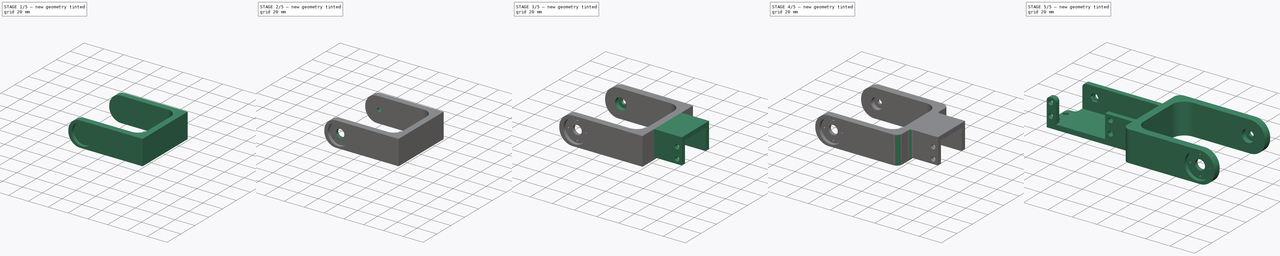
[diagram: build sequence overview — one tinted view per stage of 5, left to right]
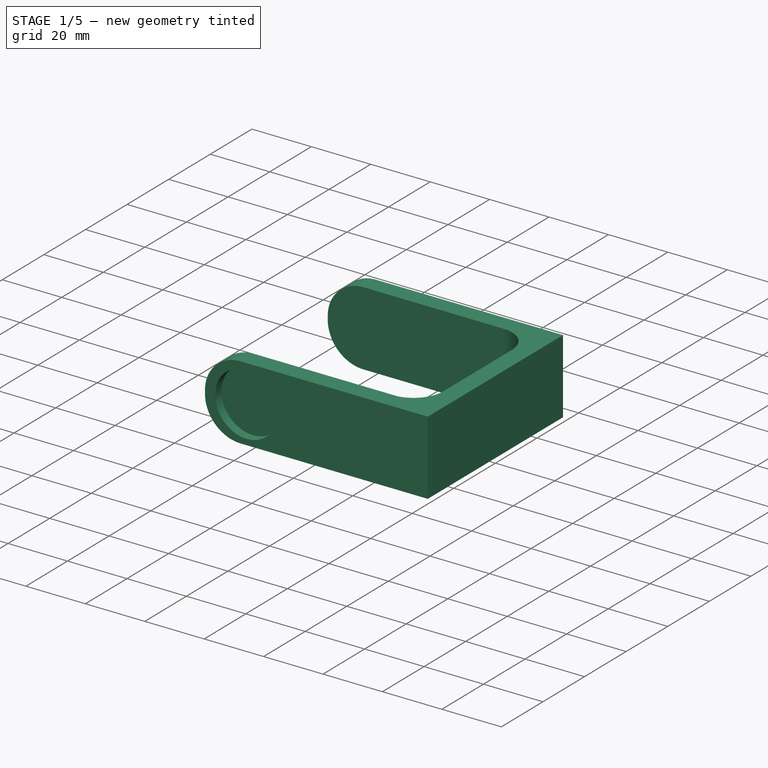
[diagram: stage 1 of 5 — iso view after this stage's code; geometry added in this stage tinted green]
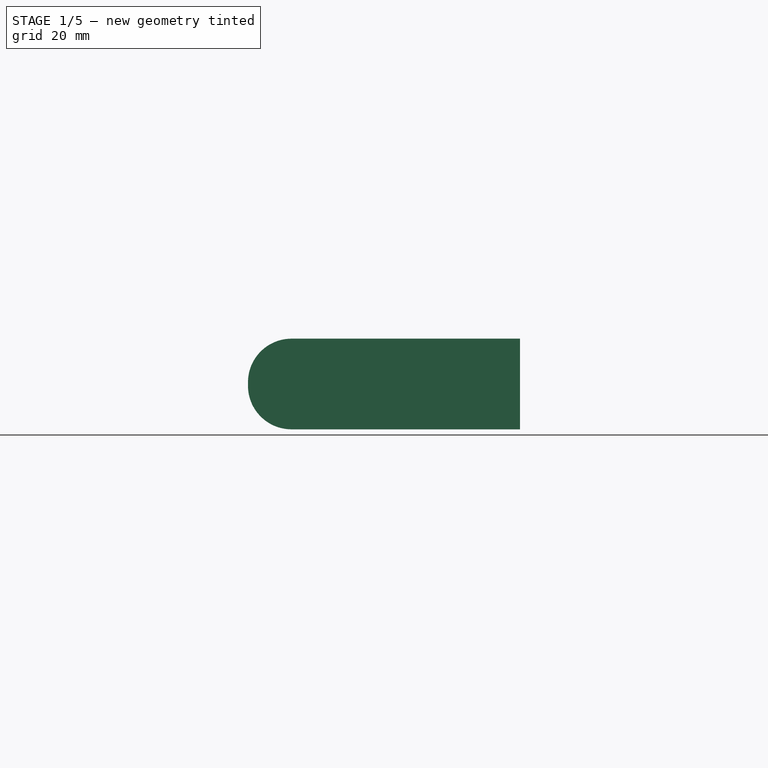
[diagram: stage 1 of 5 — front view after this stage's code; geometry added in this stage tinted green]
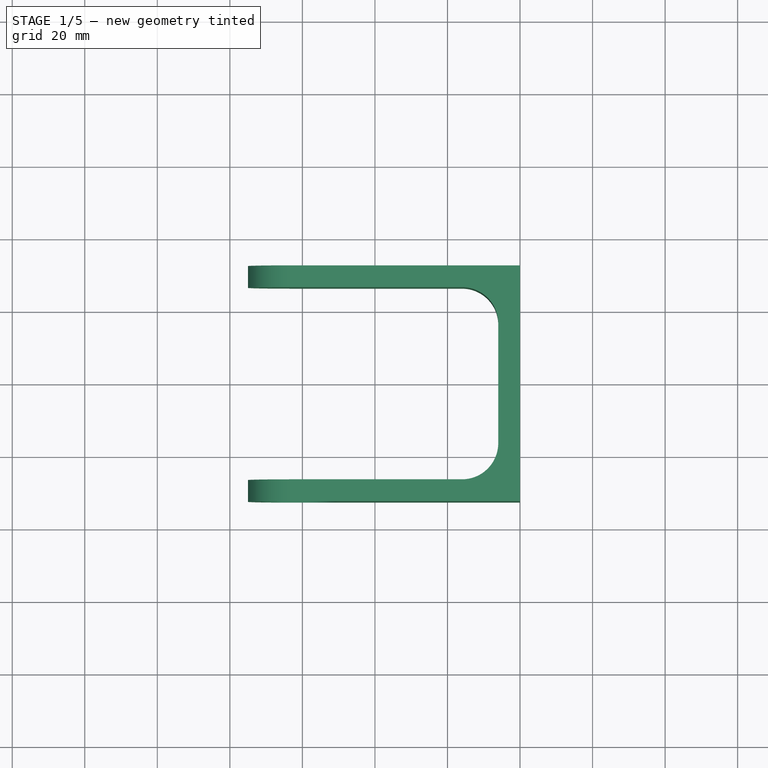
[diagram: stage 1 of 5 — top view after this stage's code; geometry added in this stage tinted green]
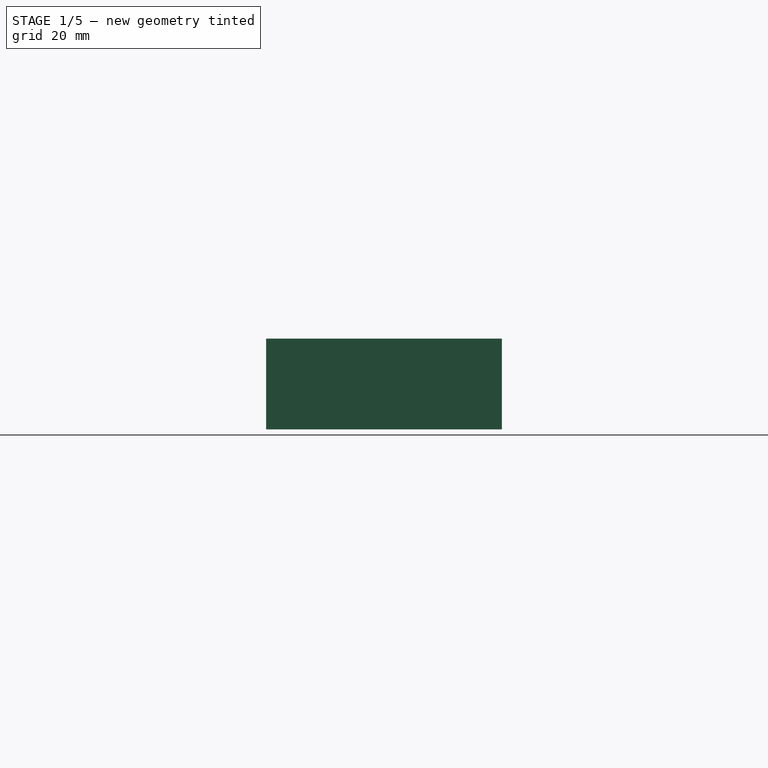
[diagram: stage 1 of 5 — right view after this stage's code; geometry added in this stage tinted green]
FCSTD DOCUMENT  (FreeCAD 0.17R13519 (Git))
Label: pieza3V6
License: CreativeCommons Attribution-ShareAlike
LicenseURL: http://creativecommons.org/licenses/by-sa/4.0/
objects: Sketcher::SketchObject×8, PartDesign::Pocket×7, PartDesign::Plane×7, PartDesign::Fillet×4, PartDesign::Pad×2, Part::Fillet×1, PartDesign::Body×1, Part::MultiFuse×1, Part::Feature×1
note: 41 computed .brp shape members not serialized (recipe doc carries the construction recipe); baked Part::Feature solids carry a one-line shape summary decoded from their .brp

FEATURE [Sketcher::SketchObject] Sketch
  MapMode = 5
  Support = -> [XY_Plane]
  sketch-geometry (10):
    g0: LineSegment StartX=-75 StartY=32.5 StartZ=0 EndX=-75 EndY=26.5 EndZ=0
    g1: LineSegment StartX=-75 StartY=26.5 StartZ=0 EndX=-16 EndY=26.5 EndZ=0
    g2: LineSegment StartX=-6 StartY=16.5 StartZ=0 EndX=-6 EndY=-16.5 EndZ=0
    g3: LineSegment StartX=-16 StartY=-26.5 StartZ=0 EndX=-75 EndY=-26.5 EndZ=0
    g4: LineSegment StartX=-75 StartY=-26.5 StartZ=0 EndX=-75 EndY=-32.5 EndZ=0
    g5: LineSegment StartX=-75 StartY=-32.5 StartZ=0 EndX=0 EndY=-32.5 EndZ=0
    g6: LineSegment StartX=0 StartY=32.5 StartZ=0 EndX=-75 EndY=32.5 EndZ=0
    g7: ArcOfCircle CenterX=-16 CenterY=16.5 CenterZ=0 NormalX=0 NormalY=0 NormalZ=1 AngleXU=0 Radius=10 StartAngle=0 EndAngle=1.5708
    g8: ArcOfCircle CenterX=-16 CenterY=-16.5 CenterZ=0 NormalX=0 NormalY=0 NormalZ=1 AngleXU=0 Radius=10 StartAngle=4.71239 EndAngle=6.28319
    g9: LineSegment StartX=0 StartY=32.5 StartZ=0 EndX=0 EndY=-32.5 EndZ=0
  constraints (27):
    c: Vertical(g0)
    c: Coincident(g0,g1)
    c: Horizontal(g1)
    c: Vertical(g2)
    c: Horizontal(g3)
    c: Coincident(g3,g4)
    c: Vertical(g4)
    c: Coincident(g4,g5)
    c: PointOnObject(g5,g-2)
    c: Horizontal(g5)
    c: Coincident(g6,g0)
    c: Horizontal(g6)
    c: DistanceX(g6,g6) = 75
    c: Equal(g6,g5)
    c: Equal(g0,g4)
    c: DistanceY(g4,g4) = 6
    c: DistanceY(g5,g6) = 65
    c: Tangent(g1,g7) = 1.5708
    c: Tangent(g2,g7) = 1.5708
    c: Tangent(g2,g8) = 1.5708
    c: Tangent(g3,g8) = 1.5708
    c: Equal(g8,g7)
    c: Radius(g7) = 10
    c: Symmetric(g5,g6,g-1)
    c: DistanceX(g2,g5) = 6
    c: Coincident(g9,g6)
    c: Coincident(g9,g5)
FEATURE [PartDesign::Pad] Pad
  Length = 25
  Length2 = 100
  Profile = -> Sketch
  Type = 0
FEATURE [PartDesign::Fillet] Fillet005
  Base = -> Pad [Edge7,Edge6,Edge24,Edge25]
  BaseFeature = -> Pad
  Radius = 12
FEATURE [PartDesign::Plane] DatumPlane
  MapMode = 5
  Placement = pos=(0,-32.5,0) rot=(1,0,0;1.5708rad)
  Support = -> [Fillet005]
FEATURE [Sketcher::SketchObject] Sketch001
  MapMode = 5
  Placement = pos=(0,-32.5,0) rot=(1,0,0;1.5708rad)
  Support = -> [DatumPlane]
  sketch-geometry (2):
    g0: LineSegment [constr] StartX=-89.6906 StartY=12.5 StartZ=0 EndX=25.4828 EndY=12.5 EndZ=0
    g1: Circle CenterX=-61 CenterY=12.5 CenterZ=0 NormalX=0 NormalY=0 NormalZ=1 AngleXU=0 Radius=10.55
  constraints (5):
    c: Horizontal(g0)
    c: DistanceY(g-1,g0) = 12.5
    c: PointOnObject(g1,g0)
    c: Radius(g1) = 10.55
    c: DistanceX(g1,g-1) = 61
FEATURE [PartDesign::Pocket] Pocket
  BaseFeature = -> Fillet005
  Length = 3
  Length2 = 100
  Profile = -> Sketch001
  Type = 0
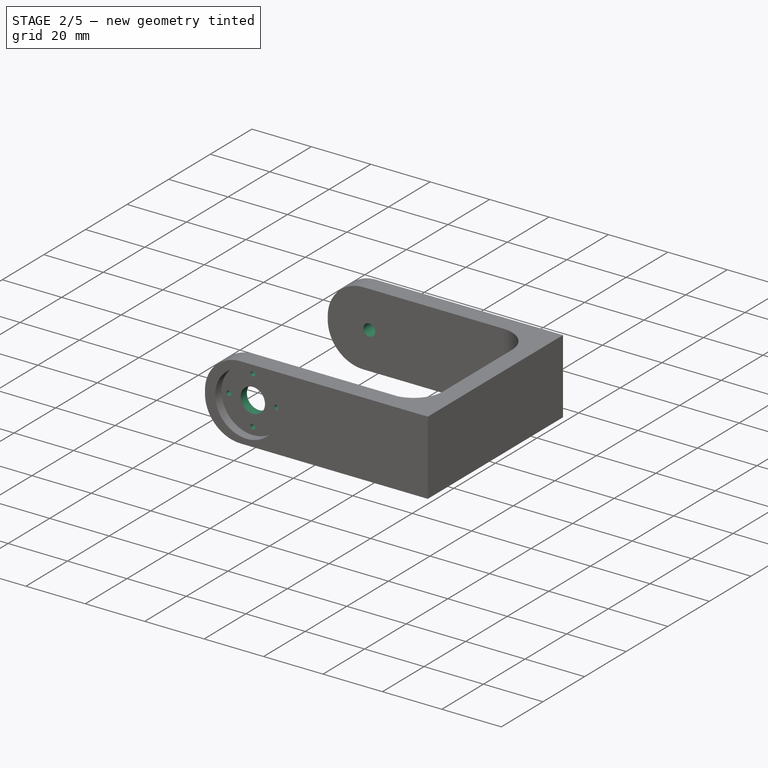
[diagram: stage 2 of 5 — iso view after this stage's code; geometry added in this stage tinted green]
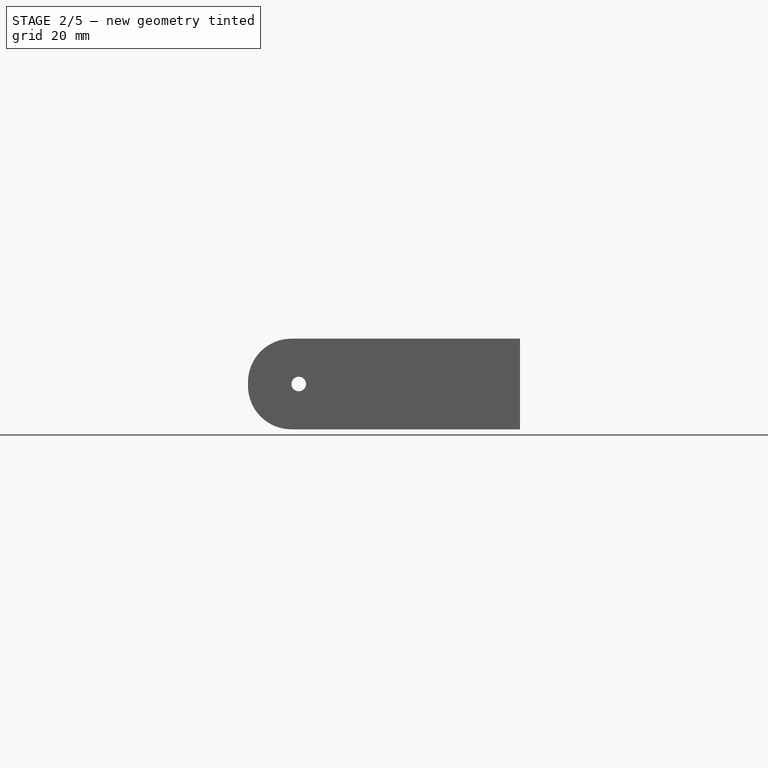
[diagram: stage 2 of 5 — front view after this stage's code; geometry added in this stage tinted green]
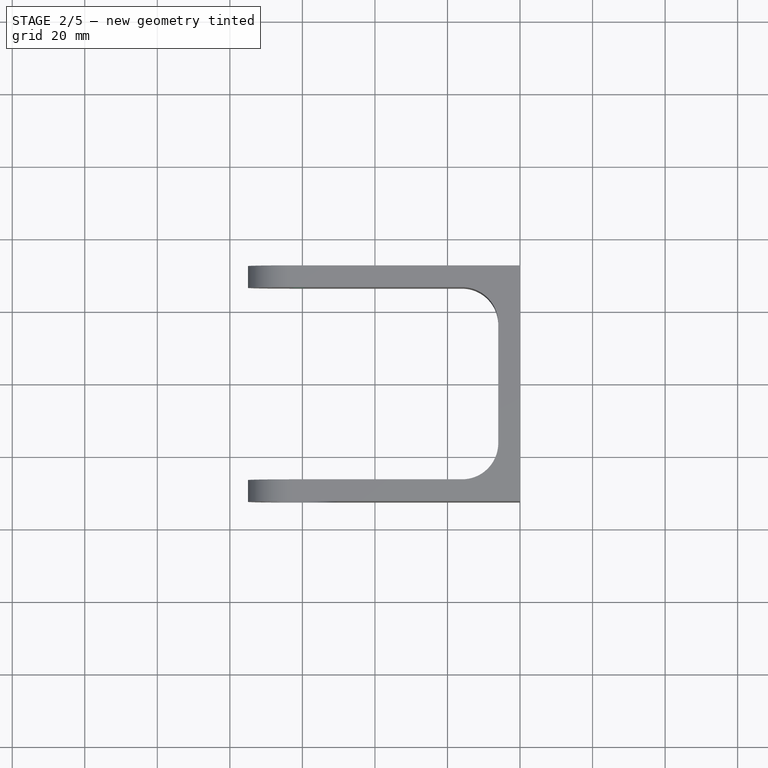
[diagram: stage 2 of 5 — top view after this stage's code; geometry added in this stage tinted green]
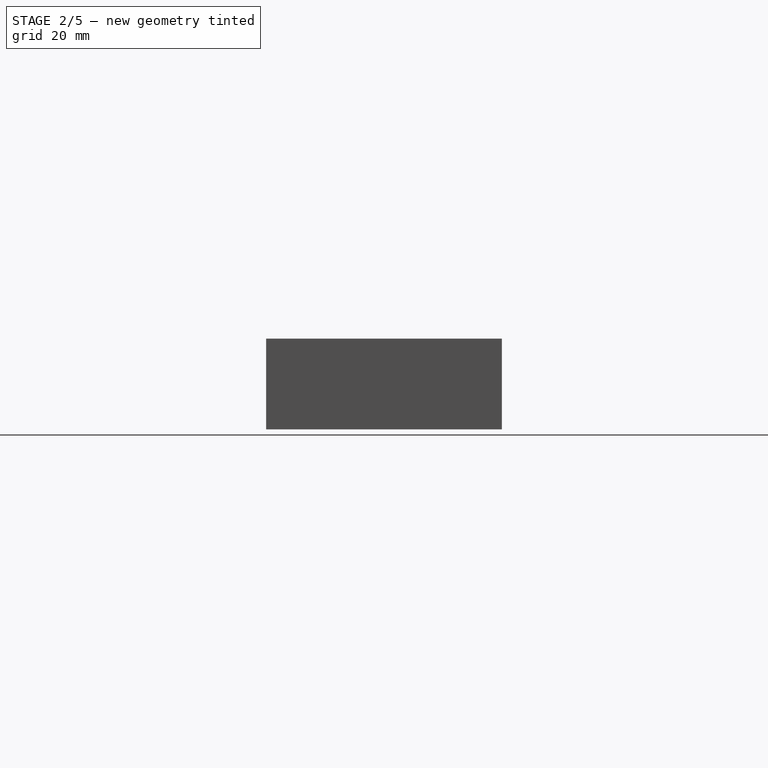
[diagram: stage 2 of 5 — right view after this stage's code; geometry added in this stage tinted green]
FEATURE [PartDesign::Plane] DatumPlane001
  MapMode = 5
  Placement = pos=(0,-29.5,0) rot=(1,0,0;1.5708rad)
  Support = -> [Pocket]
FEATURE [Sketcher::SketchObject] Sketch002
  ExternalGeometry = -> [Pocket]
  MapMode = 5
  Placement = pos=(0,-29.5,0) rot=(1,0,0;1.5708rad)
  Support = -> [DatumPlane001]
  sketch-geometry (1):
    g0: Circle CenterX=-61 CenterY=12.5 CenterZ=0 NormalX=0 NormalY=0 NormalZ=1 AngleXU=0 Radius=4.1
  constraints (2):
    c: Coincident(g0,g-3)
    c: Radius(g0) = 4.1
FEATURE [PartDesign::Pocket] Pocket001
  BaseFeature = -> Pocket
  Length = 5
  Length2 = 100
  Profile = -> Sketch002
  Type = 2
FEATURE [PartDesign::Plane] DatumPlane002
  MapMode = 5
  Placement = pos=(0,-29.5,0) rot=(1,0,0;1.5708rad)
  Support = -> [Pocket001]
FEATURE [Sketcher::SketchObject] Sketch003
  ExternalGeometry = -> [Pocket001]
  MapMode = 5
  Placement = pos=(0,-29.5,0) rot=(1,0,0;1.5708rad)
  Support = -> [DatumPlane002]
  sketch-geometry (6):
    g0: LineSegment [constr] StartX=-61 StartY=23.8845 StartZ=0 EndX=-61 EndY=-3.54192 EndZ=0
    g1: LineSegment [constr] StartX=-76.3948 StartY=12.5 StartZ=0 EndX=-47.5921 EndY=12.5 EndZ=0
    g2: Circle CenterX=-61 CenterY=20.57 CenterZ=0 NormalX=0 NormalY=0 NormalZ=1 AngleXU=0 Radius=0.8
    g3: Circle CenterX=-52.93 CenterY=12.5 CenterZ=0 NormalX=0 NormalY=0 NormalZ=1 AngleXU=0 Radius=0.8
    g4: Circle CenterX=-61 CenterY=4.43 CenterZ=0 NormalX=0 NormalY=0 NormalZ=1 AngleXU=0 Radius=0.8
    g5: Circle CenterX=-69.07 CenterY=12.5 CenterZ=0 NormalX=0 NormalY=0 NormalZ=1 AngleXU=0 Radius=0.8
  constraints (13):
    c: Vertical(g0)
    c: Horizontal(g1)
    c: PointOnObject(g4,g0)
    c: Equal(g2,g3)
    c: Equal(g3,g4)
    c: Equal(g4,g5)
    c: PointOnObject(g3,g1)
    c: PointOnObject(g5,g1)
    c: DistanceY(g4,g2) = 16.14
    c: Symmetric(g2,g4,g1)
    c: Symmetric(g5,g3,g0)
    c: Radius(g2) = 0.8
    c: DistanceX(g5,g3) = 16.14
FEATURE [PartDesign::Pocket] Pocket002
  BaseFeature = -> Pocket001
  Length = 5
  Length2 = 100
  Profile = -> Sketch003
  Type = 2
FEATURE [PartDesign::Plane] DatumPlane003
  MapMode = 5
  Placement = pos=(0,-29.5,0) rot=(1,0,0;1.5708rad)
  Support = -> [Pocket002]
FEATURE [Sketcher::SketchObject] Sketch004
  ExternalGeometry = -> [Pocket002]
  MapMode = 5
  Placement = pos=(0,-29.5,0) rot=(1,0,0;1.5708rad)
  Support = -> [DatumPlane003]
  sketch-geometry (1):
    g0: Circle CenterX=-61 CenterY=12.5 CenterZ=0 NormalX=0 NormalY=0 NormalZ=1 AngleXU=0 Radius=2
  constraints (2):
    c: Coincident(g0,g-3)
    c: Radius(g0) = 2
FEATURE [PartDesign::Pocket] Pocket003
  BaseFeature = -> Pocket002
  Length = 5
  Length2 = 100
  Profile = -> Sketch004
  Type = 1
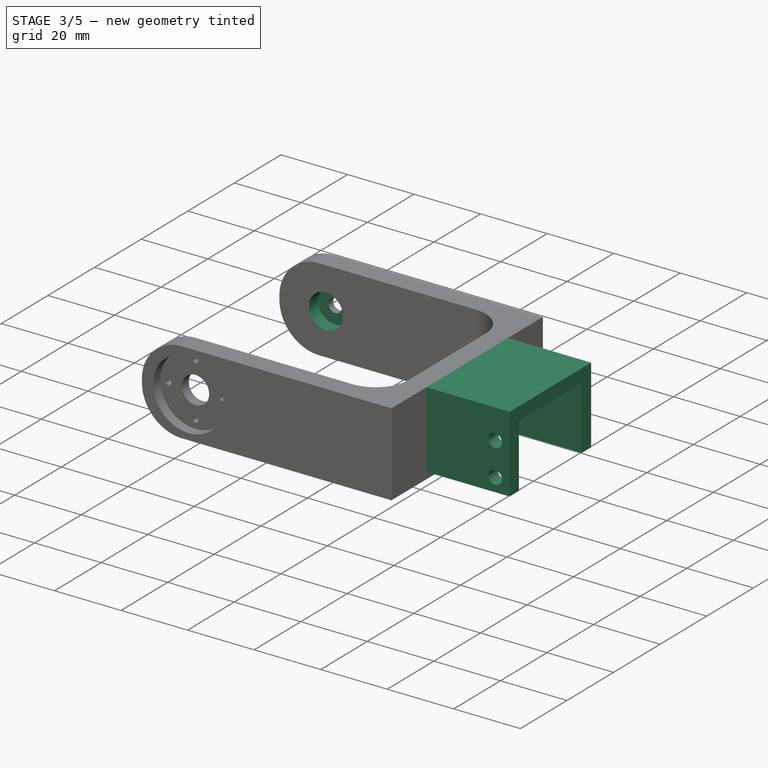
[diagram: stage 3 of 5 — iso view after this stage's code; geometry added in this stage tinted green]
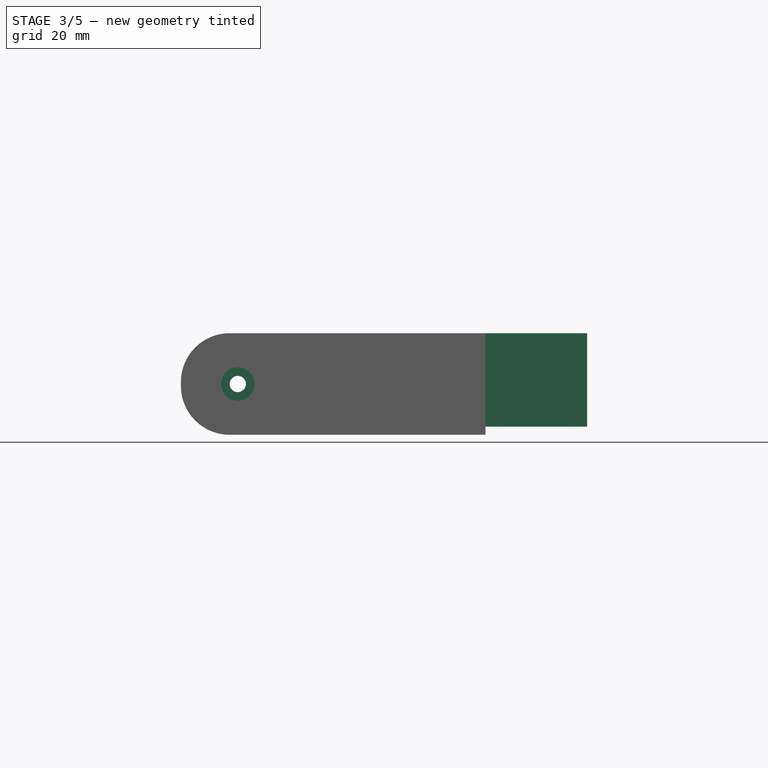
[diagram: stage 3 of 5 — front view after this stage's code; geometry added in this stage tinted green]
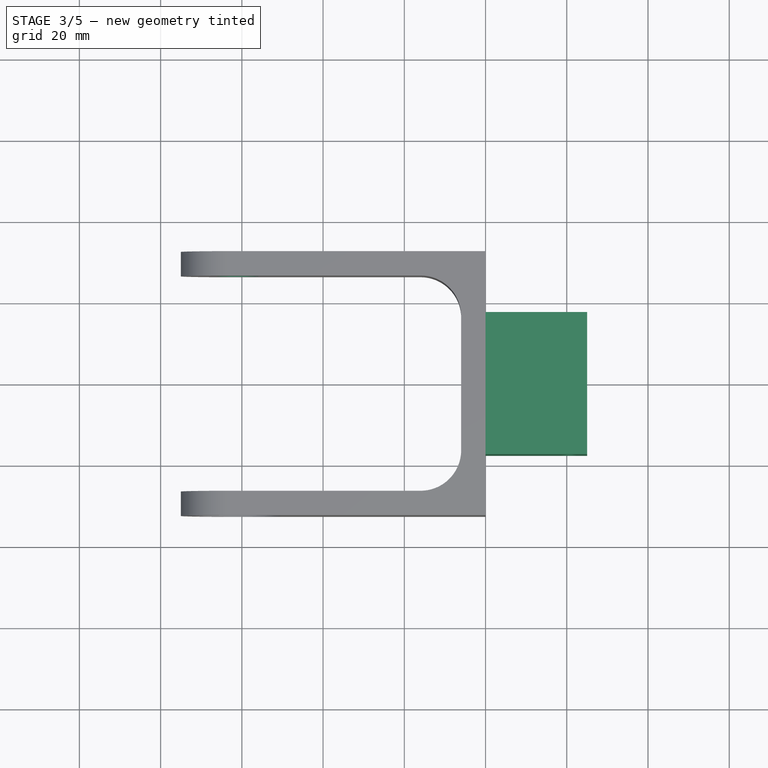
[diagram: stage 3 of 5 — top view after this stage's code; geometry added in this stage tinted green]
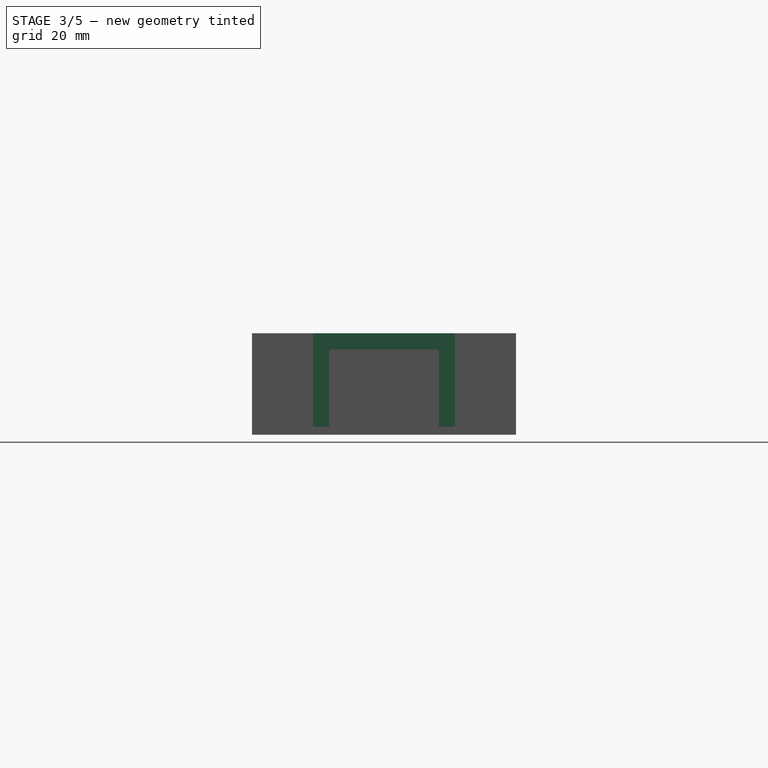
[diagram: stage 3 of 5 — right view after this stage's code; geometry added in this stage tinted green]
FEATURE [PartDesign::Plane] DatumPlane004
  MapMode = 5
  Placement = pos=(0,26.5,0) rot=(1,0,0;1.5708rad)
  Support = -> [Pocket003]
FEATURE [Sketcher::SketchObject] Sketch005
  ExternalGeometry = -> [Pocket003]
  MapMode = 5
  Placement = pos=(0,26.5,0) rot=(1,0,0;1.5708rad)
  Support = -> [DatumPlane004]
  sketch-geometry (1):
    g0: Circle CenterX=-61 CenterY=12.5 CenterZ=0 NormalX=0 NormalY=0 NormalZ=1 AngleXU=0 Radius=5.1
  constraints (2):
    c: Coincident(g0,g-3)
    c: Radius(g0) = 5.1
FEATURE [PartDesign::Pocket] Pocket004
  BaseFeature = -> Pocket003
  Length = 4
  Length2 = 100
  Profile = -> Sketch005
  Type = 0
FEATURE [PartDesign::Plane] DatumPlane005
  MapMode = 5
  Placement = pos=(0,0,0) rot=(0.57735,0.57735,0.57735;2.0944rad)
  Support = -> [Pocket004]
FEATURE [Sketcher::SketchObject] Sketch006
  ExternalGeometry = -> [Pocket004]
  MapMode = 5
  Placement = pos=(0,0,0) rot=(0.57735,0.57735,0.57735;2.0944rad)
  Support = -> [DatumPlane005]
  sketch-geometry (8):
    g0: LineSegment StartX=-17.5 StartY=25 StartZ=0 EndX=17.5 EndY=25 EndZ=0
    g1: LineSegment StartX=17.5 StartY=25 StartZ=0 EndX=17.5 EndY=2 EndZ=0
    g2: LineSegment StartX=17.5 StartY=2 StartZ=0 EndX=13.5 EndY=2 EndZ=0
    g3: LineSegment StartX=13.5 StartY=2 StartZ=0 EndX=13.5 EndY=21 EndZ=0
    g4: LineSegment StartX=13.5 StartY=21 StartZ=0 EndX=-13.5 EndY=21 EndZ=0
    g5: LineSegment StartX=-13.5 StartY=21 StartZ=0 EndX=-13.5 EndY=2 EndZ=0
    g6: LineSegment StartX=-13.5 StartY=2 StartZ=0 EndX=-17.5 EndY=2 EndZ=0
    g7: LineSegment StartX=-17.5 StartY=2 StartZ=0 EndX=-17.5 EndY=25 EndZ=0
  constraints (24):
    c: PointOnObject(g0,g-3)
    c: PointOnObject(g0,g-3)
    c: Coincident(g0,g1)
    c: Vertical(g1)
    c: Coincident(g1,g2)
    c: Coincident(g2,g3)
    c: Vertical(g3)
    c: Coincident(g3,g4)
    c: Horizontal(g4)
    c: Coincident(g4,g5)
    c: Vertical(g5)
    c: Coincident(g5,g6)
    c: Coincident(g6,g7)
    c: Coincident(g7,g0)
    c: Vertical(g7)
    c: DistanceX(g0,g0) = 35
    c: Equal(g6,g2)
    c: DistanceX(g6,g6) = 4
    c: Symmetric(g0,g0,g-2)
    c: DistanceY(g4,g0) = 4
    c: Horizontal(g2)
    c: Equal(g7,g1)
    c: DistanceY(g7,g7) = 23
    c: Horizontal(g6)
FEATURE [PartDesign::Pad] Pad001
  BaseFeature = -> Pocket004
  Length = 25
  Length2 = 100
  Profile = -> Sketch006
  Type = 0
FEATURE [PartDesign::Plane] DatumPlane006
  MapMode = 5
  Placement = pos=(0,-17.5,0) rot=(1,0,0;1.5708rad)
  Support = -> [Pad001]
FEATURE [Sketcher::SketchObject] Sketch007
  ExternalGeometry = -> [Pad001]
  MapMode = 5
  Placement = pos=(0,-17.5,0) rot=(1,0,0;1.5708rad)
  Support = -> [DatumPlane006]
  sketch-geometry (3):
    g0: LineSegment [constr] StartX=20.67 StartY=25 StartZ=0 EndX=20.67 EndY=2 EndZ=0
    g1: Circle CenterX=20.67 CenterY=5.99 CenterZ=0 NormalX=0 NormalY=0 NormalZ=1 AngleXU=0 Radius=2
    g2: Circle CenterX=20.67 CenterY=16.01 CenterZ=0 NormalX=0 NormalY=0 NormalZ=1 AngleXU=0 Radius=2
  constraints (10):
    c: PointOnObject(g0,g-5)
    c: PointOnObject(g0,g-4)
    c: Vertical(g0)
    c: DistanceX(g0,g-4) = 4.33
    c: PointOnObject(g1,g0)
    c: PointOnObject(g2,g0)
    c: Equal(g2,g1)
    c: Radius(g1) = 2
    c: DistanceY(g0,g1) = 3.99
    c: DistanceY(g1,g2) = 10.02
FEATURE [PartDesign::Pocket] Pocket005002
  BaseFeature = -> Pad001
  Length = 5
  Length2 = 100
  Profile = -> Sketch007
  Type = 2
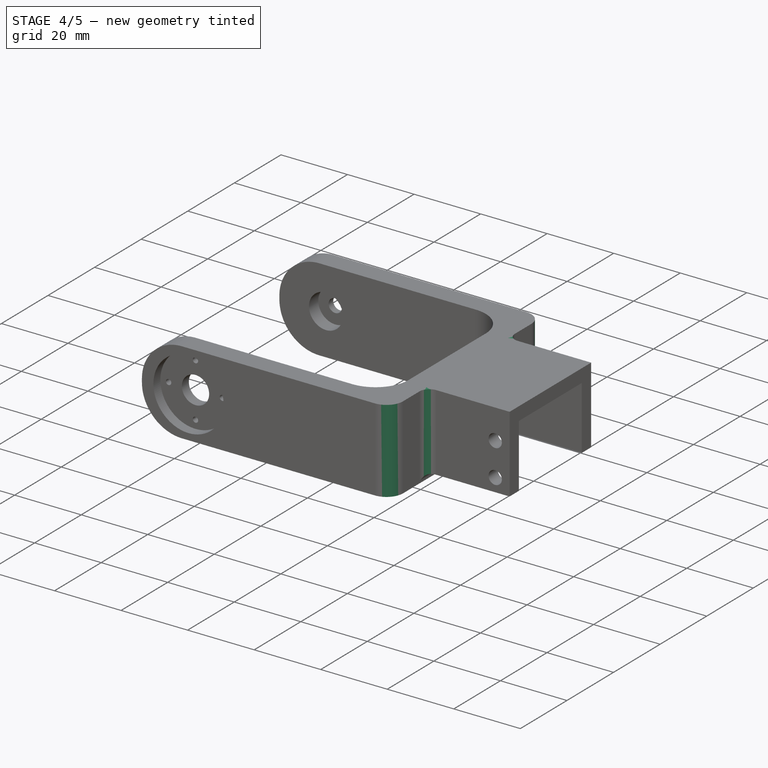
[diagram: stage 4 of 5 — iso view after this stage's code; geometry added in this stage tinted green]
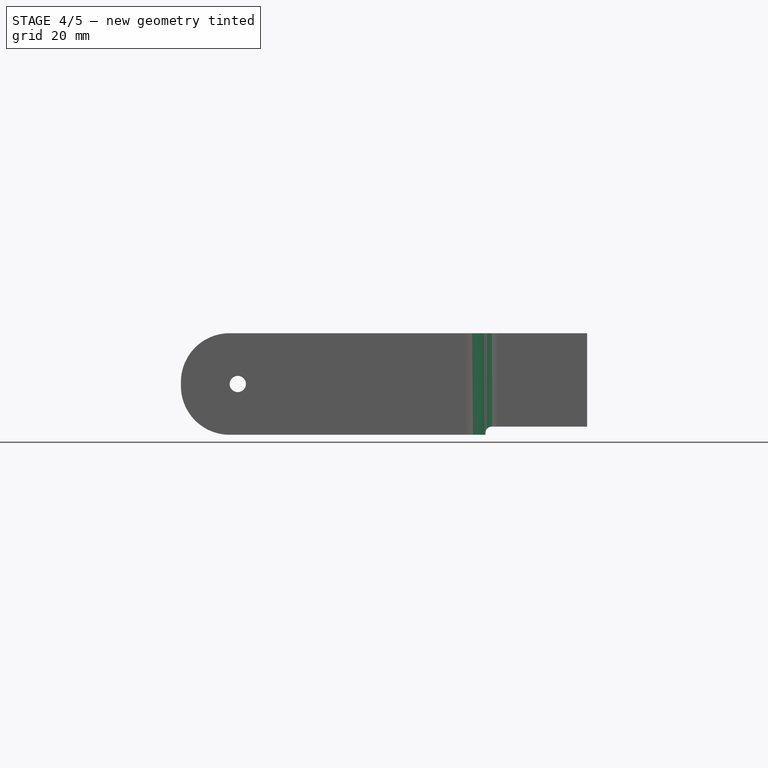
[diagram: stage 4 of 5 — front view after this stage's code; geometry added in this stage tinted green]
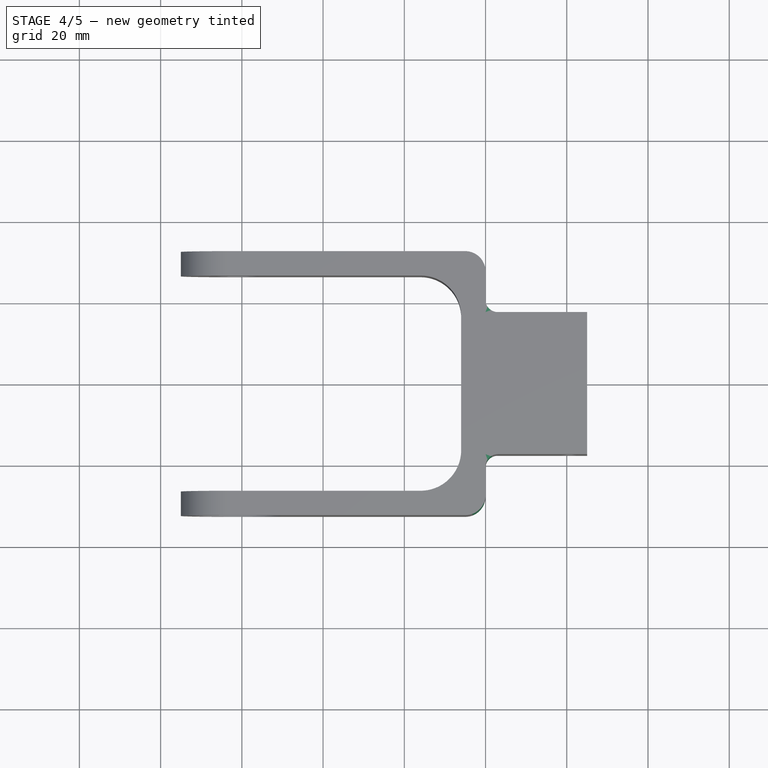
[diagram: stage 4 of 5 — top view after this stage's code; geometry added in this stage tinted green]
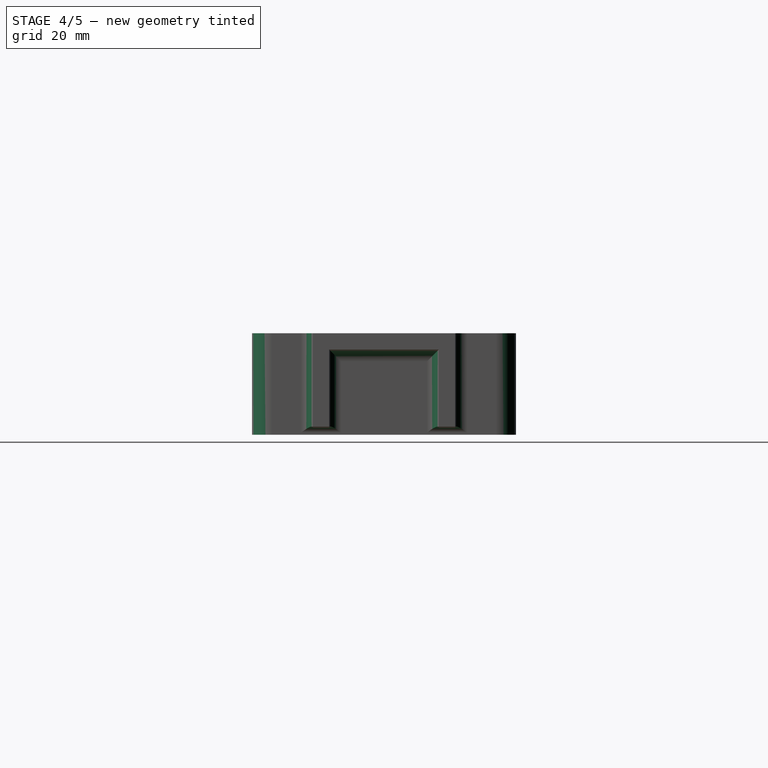
[diagram: stage 4 of 5 — right view after this stage's code; geometry added in this stage tinted green]
FEATURE [PartDesign::Fillet] Fillet001
  Base = -> Pocket005002 [Edge34,Edge38,Edge37,Edge36,Edge40]
  BaseFeature = -> Pocket005002
  Radius = 3
FEATURE [PartDesign::Fillet] Fillet002
  Base = -> Fillet001 [Edge27,Edge19]
  BaseFeature = -> Fillet001
  Radius = 1.5
FEATURE [PartDesign::Fillet] Fillet004
  Base = -> Fillet002 [Edge6,Edge10]
  BaseFeature = -> Fillet002
  Radius = 5
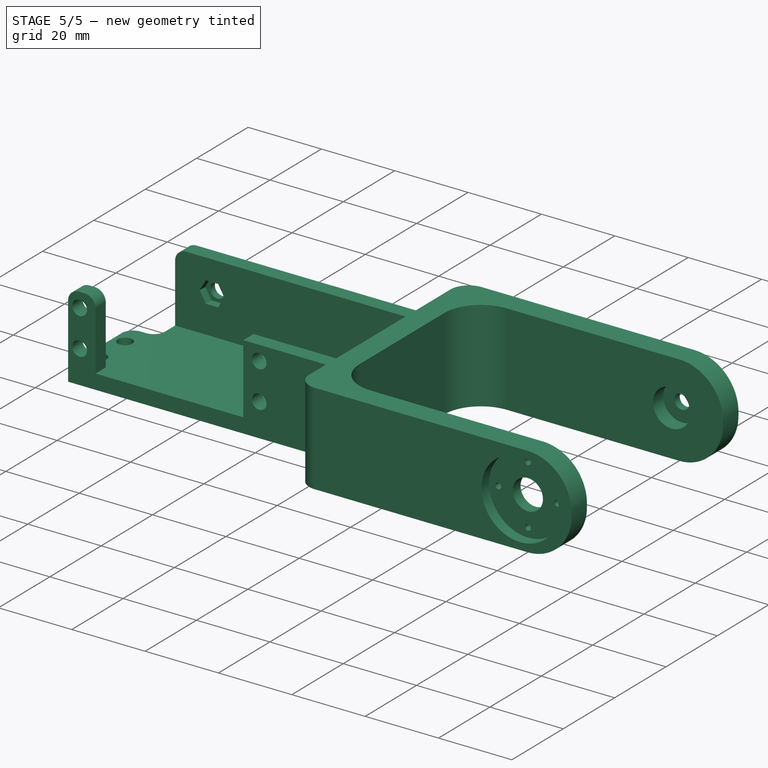
[diagram: stage 5 of 5 — iso view after this stage's code; geometry added in this stage tinted green]
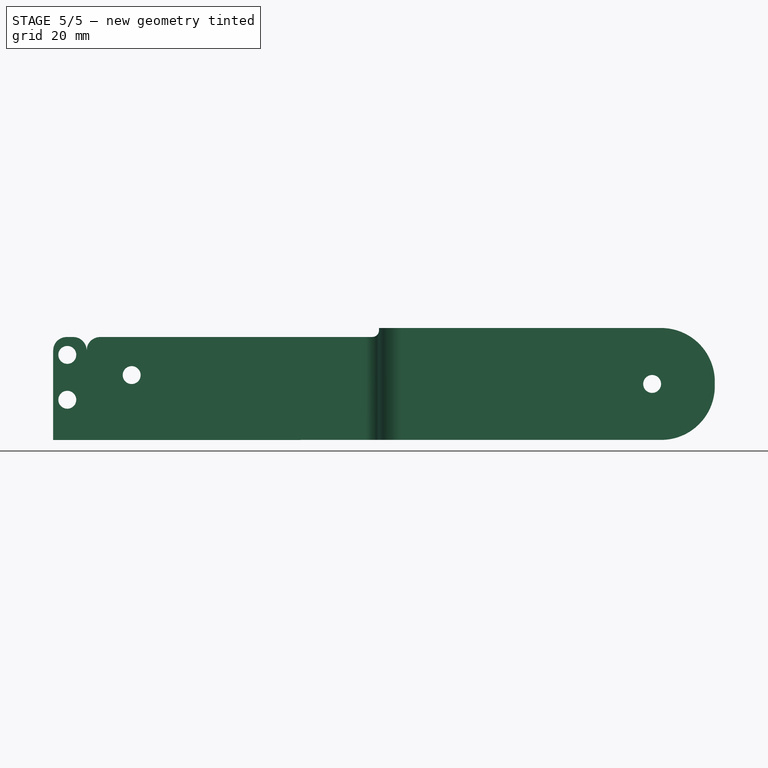
[diagram: stage 5 of 5 — front view after this stage's code; geometry added in this stage tinted green]
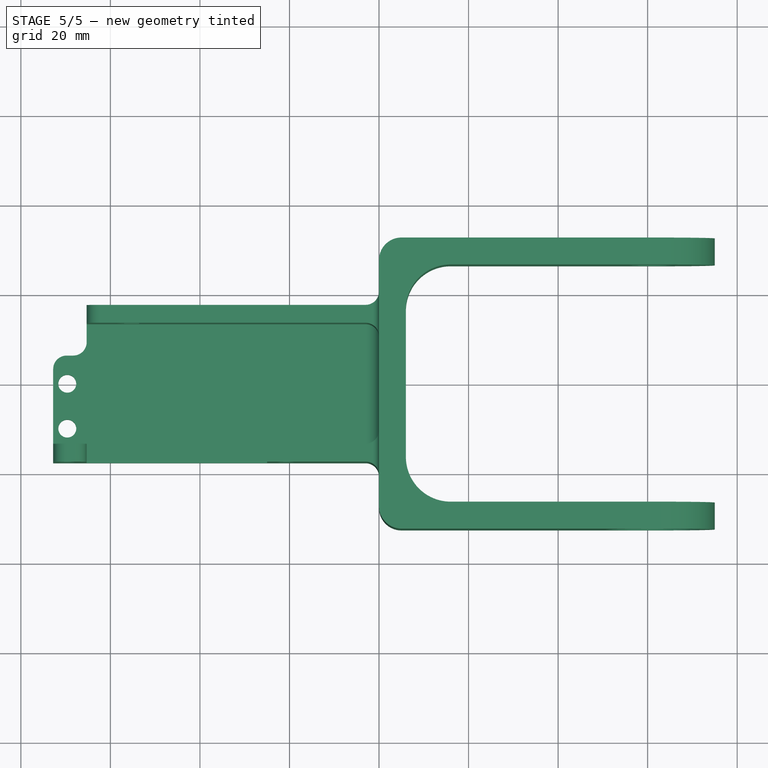
[diagram: stage 5 of 5 — top view after this stage's code; geometry added in this stage tinted green]
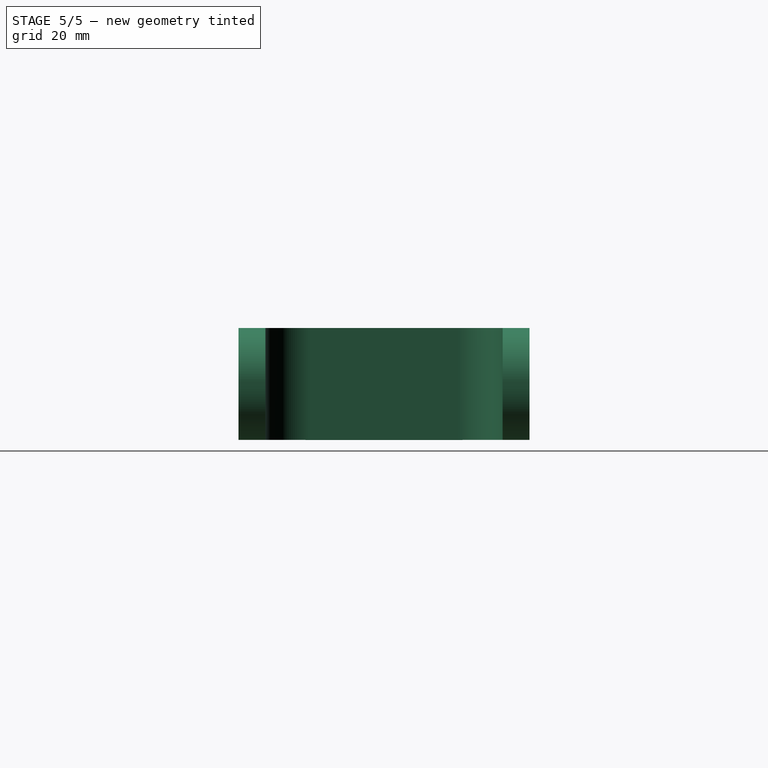
[diagram: stage 5 of 5 — right view after this stage's code; geometry added in this stage tinted green]
FEATURE [PartDesign::Pocket] Pocket005
  Length = 0
  Length2 = 100
  Placement = pos=(0,0,0) rot=(0.57735,0.57735,0.57735;2.0944rad)
  Type = 2
FEATURE [Part::Fillet] Fillet
  Base = -> Pocket005
  Edges = 5 edges r=3: [Edge13,Edge16,Edge18,Edge60,Edge62]
  Placement = pos=(-45.15,0,-25.02) rot=(0,0,1;0rad)
FEATURE [PartDesign::Body] Body
  Group = -> [Sketch,Pad,Fillet005,DatumPlane,Sketch001,Pocket,DatumPlane001,Sketch002,Pocket001,DatumPlane002,Sketch003,Pocket002,DatumPlane003,Sketch004,Pocket003,DatumPlane004,Sketch005,Pocket004,DatumPlane005,Sketch006,Pad001,DatumPlane006,Sketch007,Pocket005002,Fillet001,Fillet002,Fillet004]
  Origin = -> Origin
  Placement = pos=(0,0,0) rot=(0,1,0;3.14159rad)
  Tip = -> Fillet004
FEATURE [Part::MultiFuse] Fusion
  Shapes = -> [Fillet,Body]
FEATURE [Part::Feature] Fusion001
  shape: bbox 147.8 x 65 x 25.02 mm, 103 faces (baked)
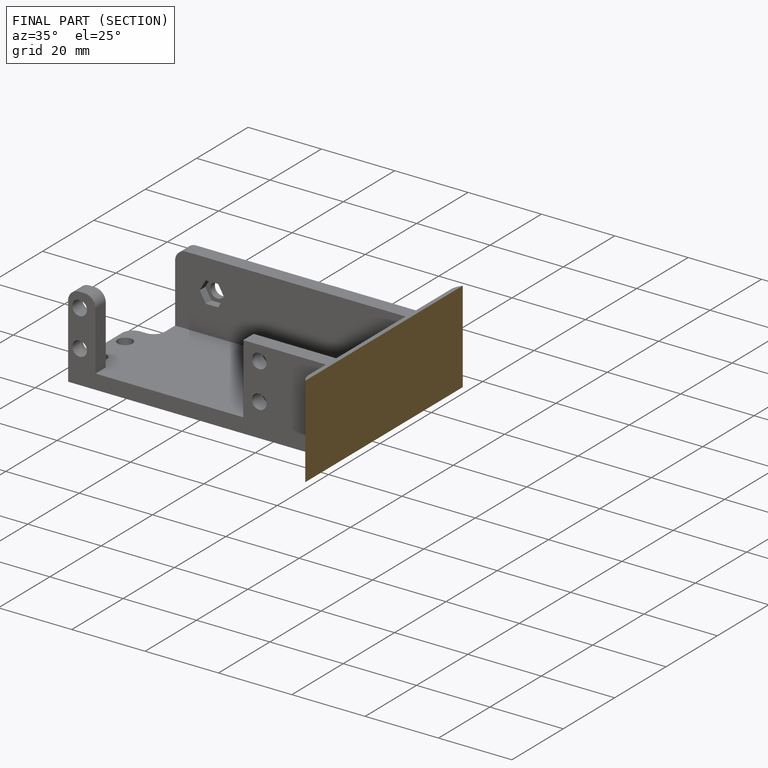
[diagram: finished part — half-section view (interior)]
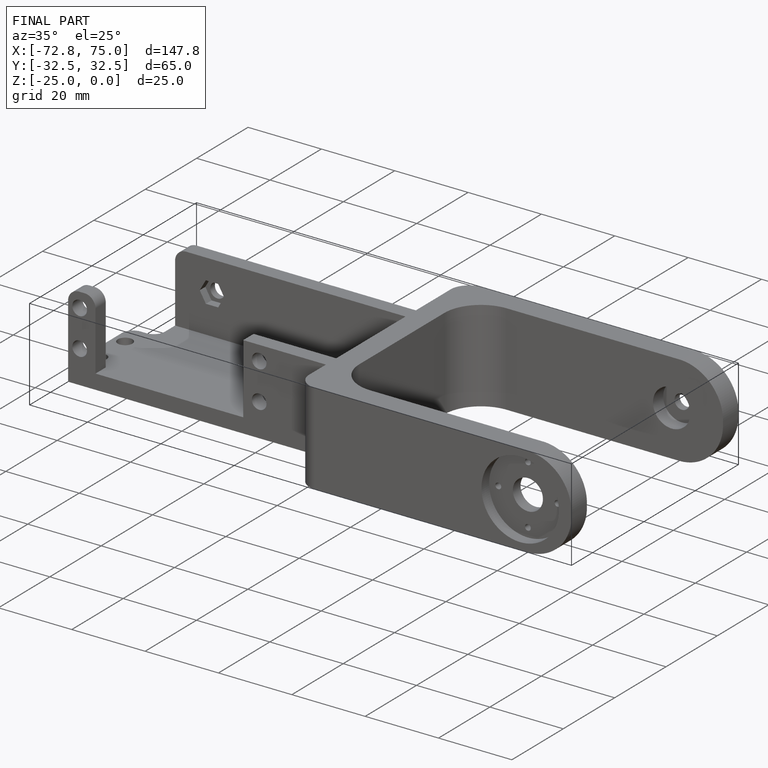
[diagram: finished part — iso view with bounding-box wireframe]
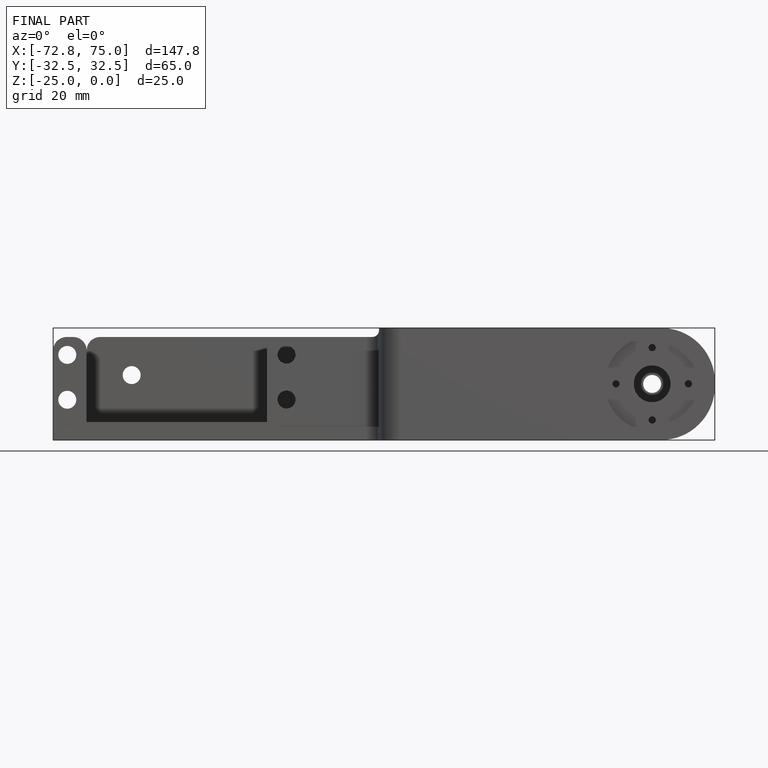
[diagram: finished part — front view with bounding-box wireframe]
